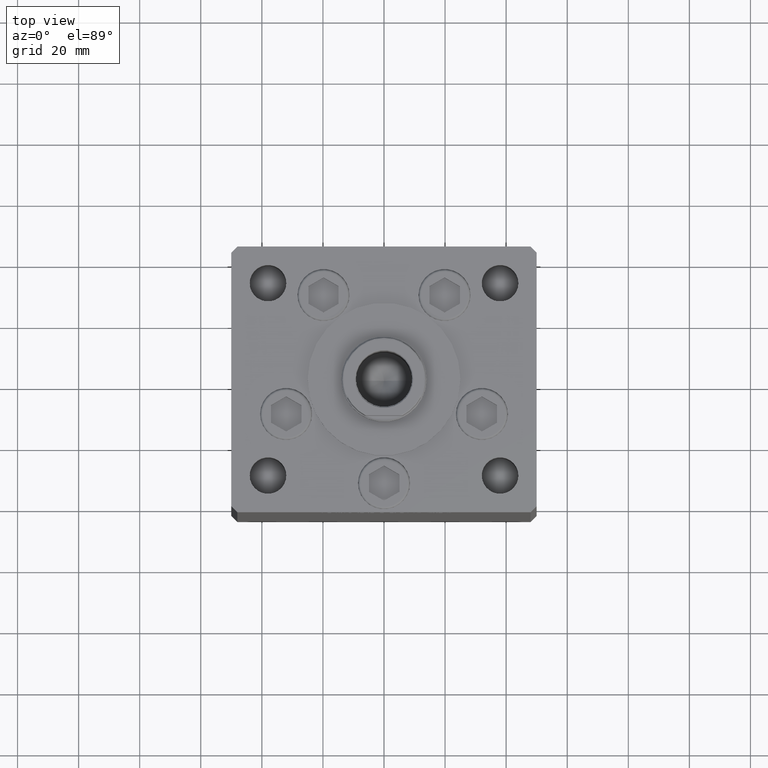
[diagram: clean part render]
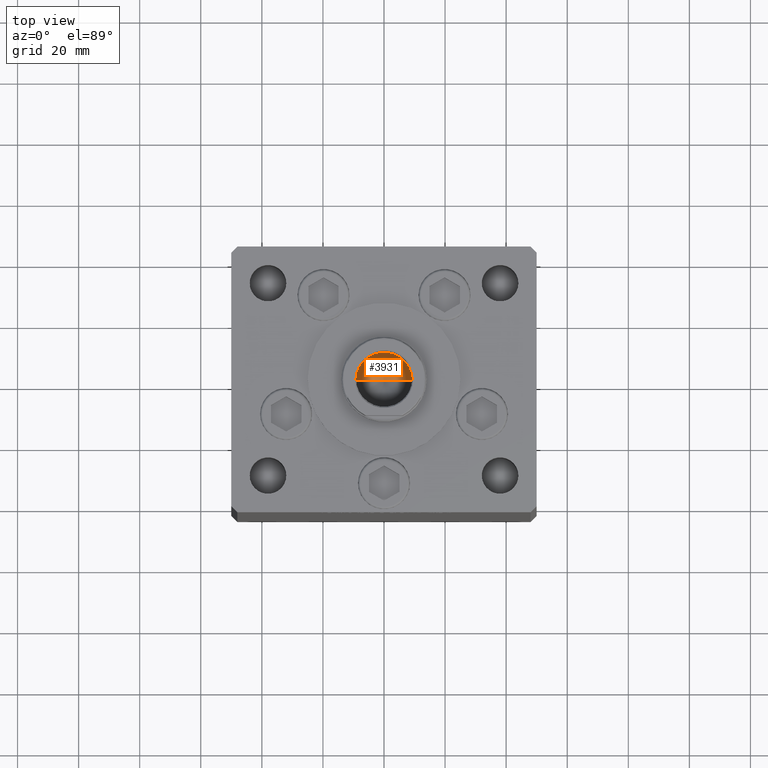
[diagram: same view with one face highlighted and labeled with its STEP entity id]
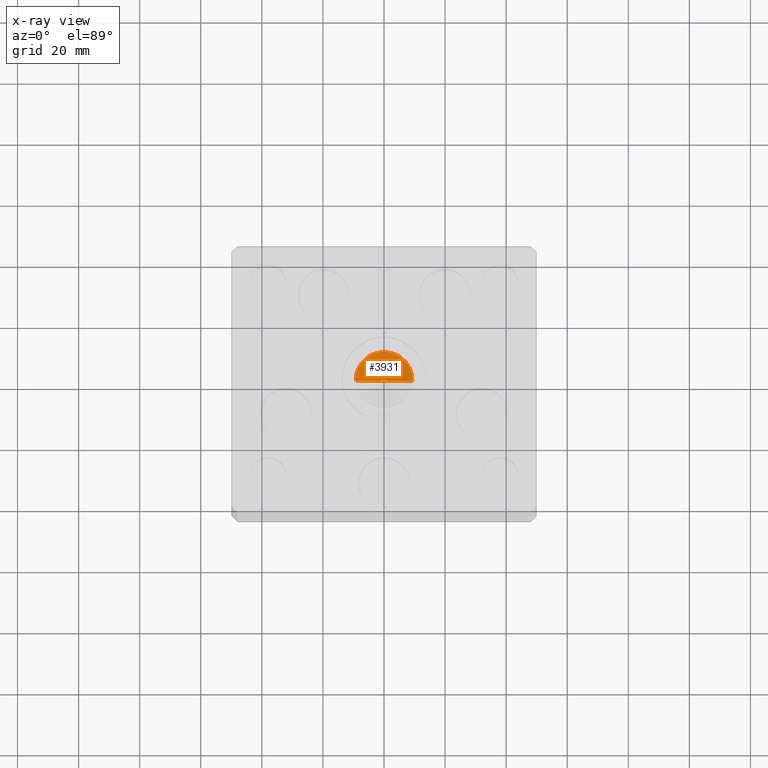
[diagram: x-ray of the same camera — body ghosted, the highlighted face saturated]
A machine part, top view. The second image highlights one B-rep face of the part: STEP entity #3931.
The next image is the same camera in x-ray: the body ghosted, the highlighted face saturated — about 0% of this face is hidden behind the body in this view.
In plain terms, the highlighted conical surface has half-angle 59 deg.
Its self-contained STEP definition (entity closure, byte-faithful):
#893 = DIRECTION ( 'NONE',  ( -0.8571673007021117785, 1.049727191138617956E-16, 0.5150380749100550437 ) ) ;
#1471 = DIRECTION ( 'NONE',  ( -0.000000000000000000, -0.000000000000000000, 1.000000000000000000 ) ) ;
#2507 = CARTESIAN_POINT ( 'NONE',  ( 9.249999999999994671, 0.000000000000000000, 130.2500000000000000 ) ) ;
#3931 = ADVANCED_FACE ( 'NONE', ( #21259 ), #48587, .F. ) ;
#4384 = DIRECTION ( 'NONE',  ( 1.000000000000000000, 0.000000000000000000, 0.000000000000000000 ) ) ;
#5176 = CARTESIAN_POINT ( 'NONE',  ( 0.000000000000000000, 0.000000000000000000, 130.2500000000000000 ) ) ;
#5793 = ORIENTED_EDGE ( 'NONE', *, *, #20418, .F. ) ;
#5842 = EDGE_CURVE ( 'NONE', #8626, #49569, #25994, .T. ) ;
#8626 = VERTEX_POINT ( 'NONE', #36939 ) ;
#9574 = CARTESIAN_POINT ( 'NONE',  ( 9.249999999999994671, 0.000000000000000000, 130.2500000000000000 ) ) ;
#12252 = VECTOR ( 'NONE', #33910, 1000.000000000000000 ) ;
#12263 = EDGE_CURVE ( 'NONE', #49569, #12402, #20782, .T. ) ;
#12402 = VERTEX_POINT ( 'NONE', #39404 ) ;
#12544 = DIRECTION ( 'NONE',  ( -0.000000000000000000, -0.000000000000000000, 1.000000000000000000 ) ) ;
#12754 = CARTESIAN_POINT ( 'NONE',  ( -9.249999999999994671, 1.132798289211300909E-15, 130.2500000000000000 ) ) ;
#17605 = VECTOR ( 'NONE', #893, 1000.000000000000000 ) ;
#20418 = EDGE_CURVE ( 'NONE', #8626, #12402, #43708, .T. ) ;
#20782 = CIRCLE ( 'NONE', #50243, 9.249999999999994671 ) ;
#21259 = FACE_OUTER_BOUND ( 'NONE', #25548, .T. ) ;
#21777 = DIRECTION ( 'NONE',  ( 1.000000000000000000, 0.000000000000000000, 0.000000000000000000 ) ) ;
#24430 = CARTESIAN_POINT ( 'NONE',  ( 0.000000000000000000, 0.000000000000000000, 130.2500000000000000 ) ) ;
#25548 = EDGE_LOOP ( 'NONE', ( #5793, #44655, #26575 ) ) ;
#25994 = LINE ( 'NONE', #2507, #12252 ) ;
#26575 = ORIENTED_EDGE ( 'NONE', *, *, #12263, .T. ) ;
#27529 = AXIS2_PLACEMENT_3D ( 'NONE', #5176, #1471, #21777 ) ;
#33910 = DIRECTION ( 'NONE',  ( 0.8571673007021117785, 0.000000000000000000, 0.5150380749100550437 ) ) ;
#36939 = CARTESIAN_POINT ( 'NONE',  ( -1.046994375366439223E-14, 0.000000000000000000, 124.6920392739950643 ) ) ;
#39404 = CARTESIAN_POINT ( 'NONE',  ( -9.249999999999994671, 1.132798289211300909E-15, 130.2500000000000000 ) ) ;
#43708 = LINE ( 'NONE', #12754, #17605 ) ;
#44655 = ORIENTED_EDGE ( 'NONE', *, *, #5842, .T. ) ;
#48587 = CONICAL_SURFACE ( 'NONE', #27529, 9.249999999999994671, 1.029744258676653423 ) ;
#49569 = VERTEX_POINT ( 'NONE', #9574 ) ;
#50243 = AXIS2_PLACEMENT_3D ( 'NONE', #24430, #12544, #4384 ) ;